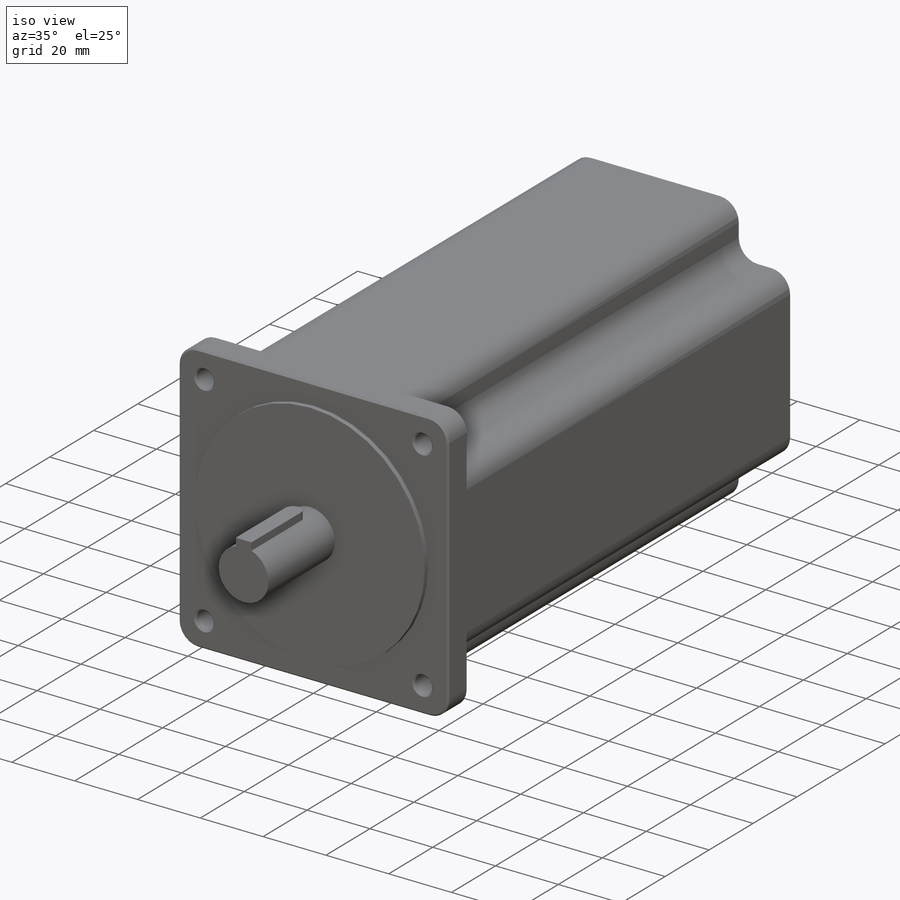
[diagram: iso view]
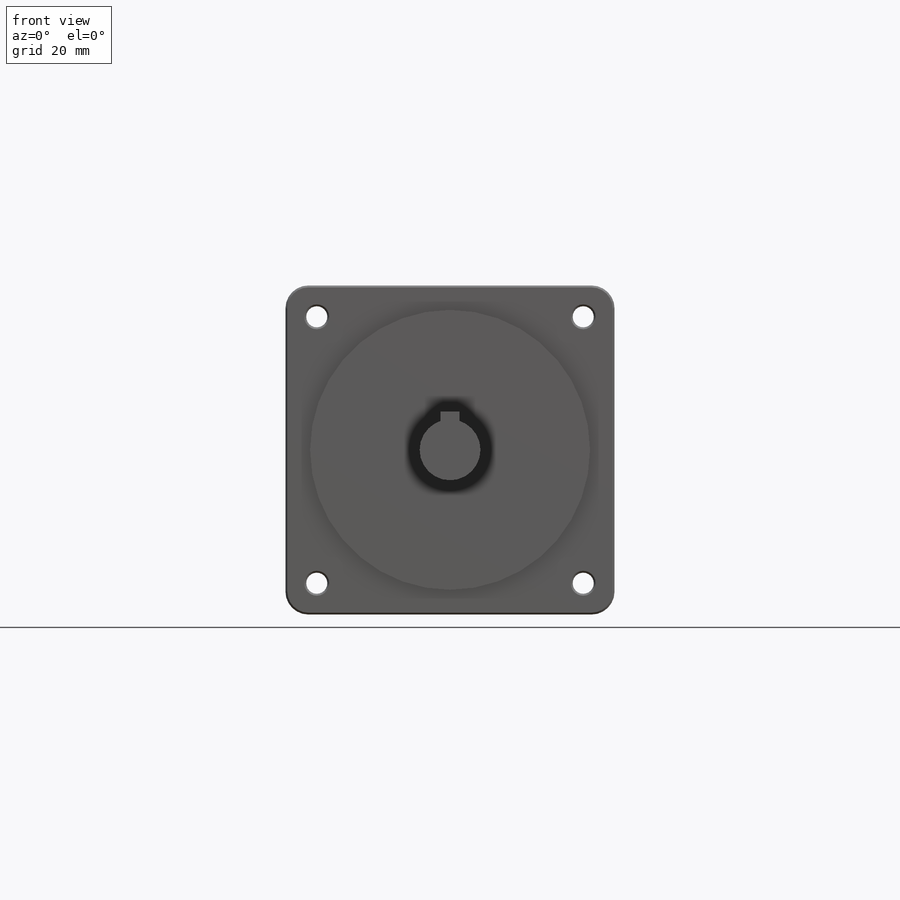
[diagram: front view]
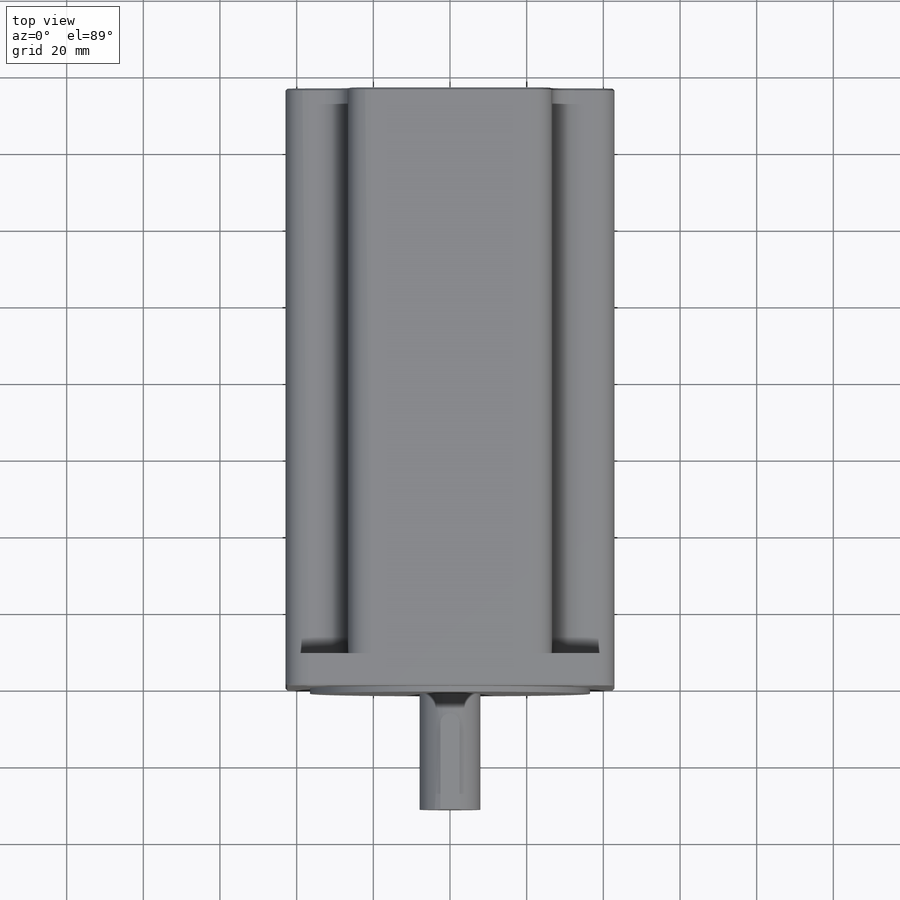
[diagram: top view]
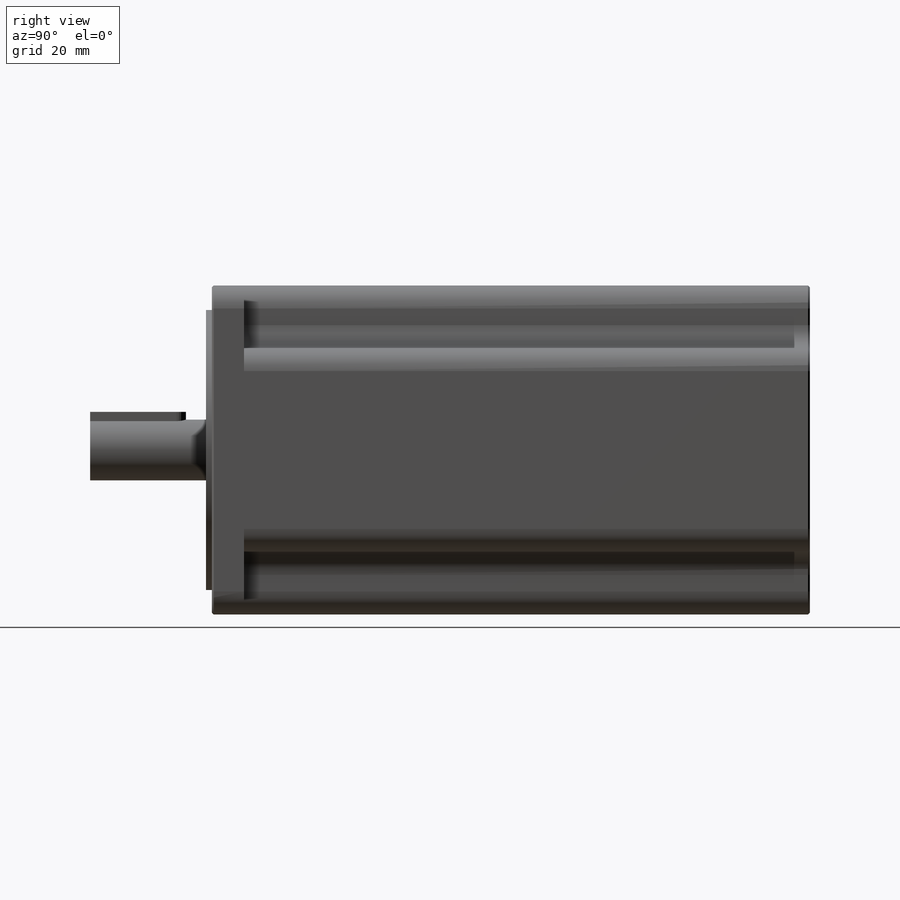
[diagram: right view]
SOLIDWORKS PART (.sldprt)
format: sldprt  version: not decoded by parser v0  size: 370,688 bytes
history: native  units: mm
features: sketch x7, extrude x5, fillet x2, material x1, plane x1, hole x1, chamfer x1 (+13 scaffold rows collapsed)
feature tree (31):
  scaffold x13  (default folders/planes/origin — collapsed)
  material  "Material <not specified>"
  sketch  "Sketch1"  dims[D1=69.5mm]
  extrude  "Boss-Extrude1"  Depth=8.38mm
  sketch  "Sketch2"  dims[D1=69.5mm]
  extrude  "Boss-Extrude3"  Depth=147.62mm
  fillet  "Fillet4"  Radius=6mm
  fillet  "Fillet5"  Radius=6mm
  sketch  "Sketch4"  dims[D1=~38.042938mm]
  extrude  "Boss-Extrude4"  Depth=1.52mm
  sketch  "Sketch5"  dims[D1=~7.578039mm]
  extrude  "Boss-Extrude5"  Depth=30.23mm
  plane  "Plane1"  Offset=32.9875mm
  sketch  "Sketch6"  dims[D1=25.0mm]
  extrude  "Boss-Extrude6"  Depth=5mm
  hole  "Ø5.0mm Dowel Hole1"  Diameter=5.5mm Depth=8.38mm
  sketch  "Sketch8"
  sketch  "Sketch9"  dims[hole-wizard template sketch: 60 standard entries collapsed; hole parameters kept: c18.Thru Hole Depth=8.38mm]
  chamfer  "Chamfer1"  Distance=0.5mm Angle=45deg
decode coverage: 15 of 16 modeling features carry decoded parameters
note: ~ marks probable driven/reference dimensions
note: suppression state not decoded; provenance and decode notes live in map.json
